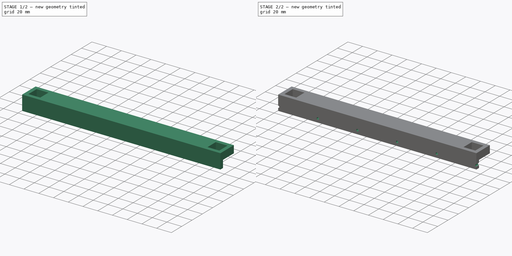
[diagram: build sequence overview — one tinted view per stage of 2, left to right]
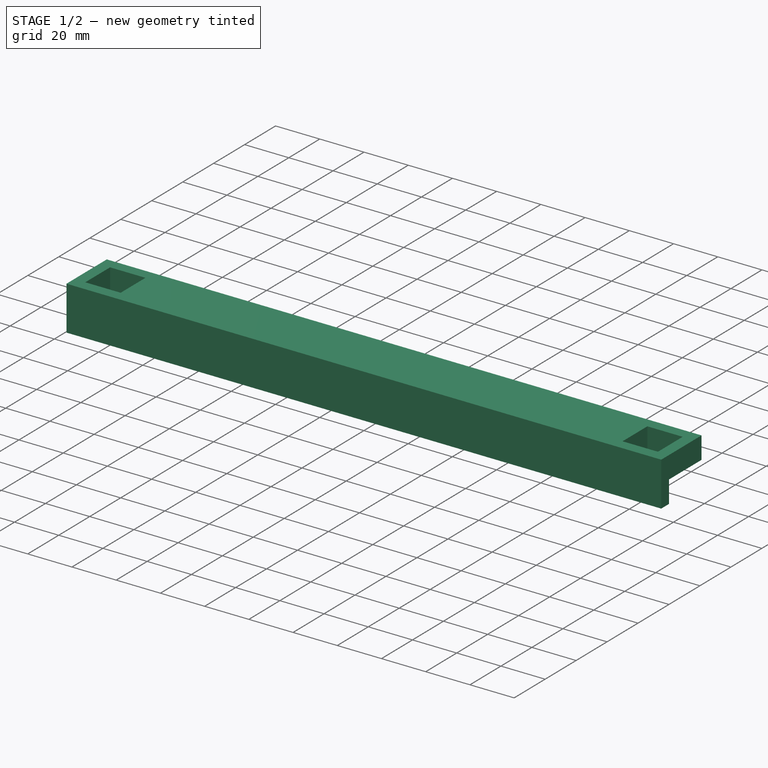
[diagram: stage 1 of 2 — iso view after this stage's code; geometry added in this stage tinted green]
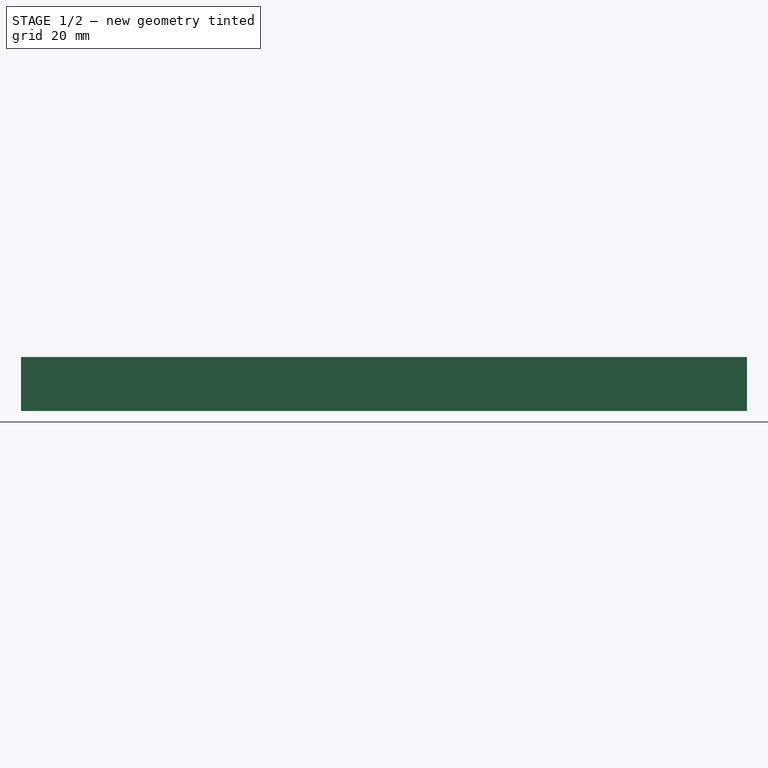
[diagram: stage 1 of 2 — front view after this stage's code; geometry added in this stage tinted green]
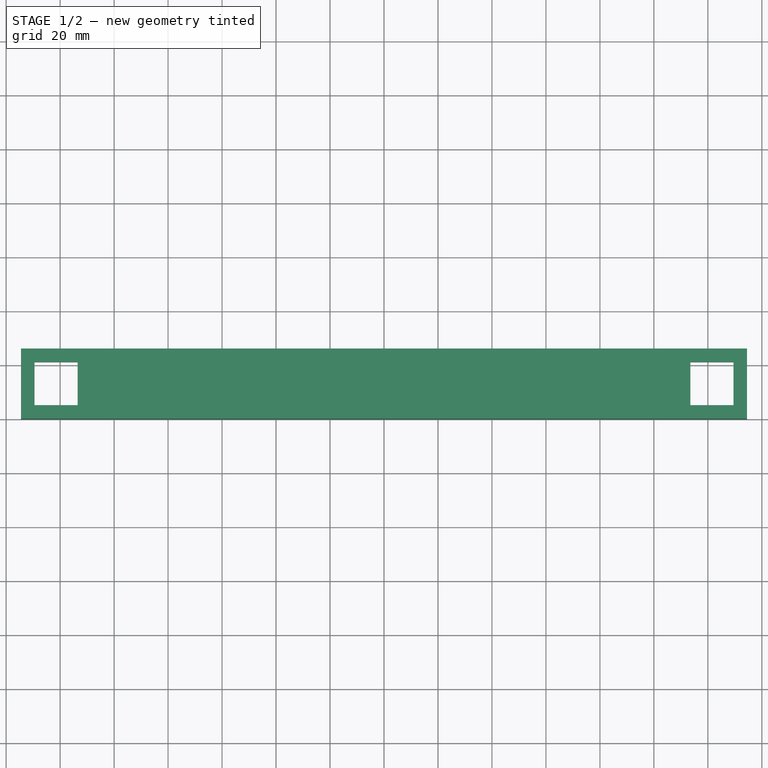
[diagram: stage 1 of 2 — top view after this stage's code; geometry added in this stage tinted green]
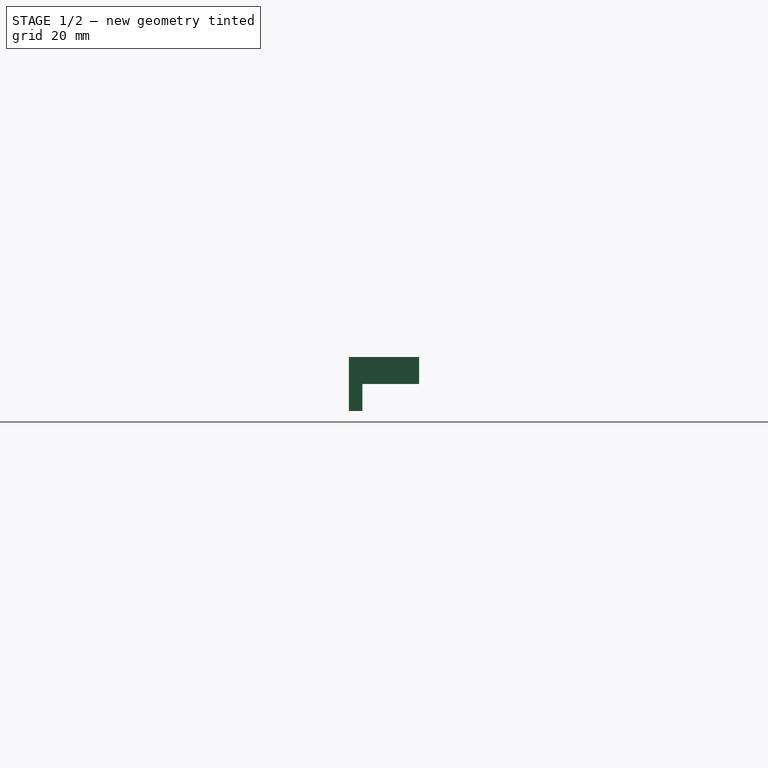
[diagram: stage 1 of 2 — right view after this stage's code; geometry added in this stage tinted green]
FCSTD DOCUMENT  (FreeCAD 0.21R33694 (Git))
Label: ngen_LePow_LcdFrame_moarExtruder
License: All rights reserved
LicenseURL: https://en.wikipedia.org/wiki/All_rights_reserved
objects: Sketcher::SketchObject×4, PartDesign::Pad×2, PartDesign::Pocket×1, PartDesign::Body×1
note: 11 computed .brp shape members not serialized (recipe doc carries the construction recipe); baked Part::Feature solids carry a one-line shape summary decoded from their .brp

FEATURE [Sketcher::SketchObject] Sketch
  FullyConstrained = true
  MapMode = 5
  Support = -> [XY_Plane]
  sketch-geometry (19):
    g0: LineSegment StartX=113.5 StartY=5 StartZ=0 EndX=129.5 EndY=5 EndZ=0
    g1: LineSegment StartX=129.5 StartY=5 StartZ=0 EndX=129.5 EndY=21 EndZ=0
    g2: LineSegment StartX=129.5 StartY=21 StartZ=0 EndX=113.5 EndY=21 EndZ=0
    g3: LineSegment StartX=113.5 StartY=21 StartZ=0 EndX=113.5 EndY=5 EndZ=0
    g4: LineSegment StartX=-129.5 StartY=5 StartZ=0 EndX=-113.5 EndY=5 EndZ=0
    g5: LineSegment StartX=-113.5 StartY=5 StartZ=0 EndX=-113.5 EndY=21 EndZ=0
    g6: LineSegment StartX=-113.5 StartY=21 StartZ=0 EndX=-129.5 EndY=21 EndZ=0
    g7: LineSegment StartX=-129.5 StartY=21 StartZ=0 EndX=-129.5 EndY=5 EndZ=0
    g8: GeomPoint X=-129.5 Y=13 Z=0
    g9: LineSegment StartX=-129.5 StartY=13 StartZ=0 EndX=129.5 EndY=13 EndZ=0
    g10: GeomPoint X=129.5 Y=13 Z=0
    g11: LineSegment StartX=-134.5 StartY=26 StartZ=0 EndX=134.5 EndY=26 EndZ=0
    g12: LineSegment StartX=134.5 StartY=26 StartZ=0 EndX=134.5 EndY=3.9329e-12 EndZ=0
    g13: LineSegment StartX=134.5 StartY=3.9333e-12 StartZ=0 EndX=-134.5 EndY=3.9333e-12 EndZ=0
    g14: LineSegment StartX=-134.5 StartY=3.9333e-12 StartZ=0 EndX=-134.5 EndY=26 EndZ=0
    g15: LineSegment StartX=-129.5 StartY=21 StartZ=0 EndX=-134.5 EndY=21 EndZ=0
    g16: LineSegment StartX=-113.5 StartY=21 StartZ=0 EndX=-113.5 EndY=26 EndZ=0
    g17: LineSegment StartX=-113.5 StartY=5 StartZ=0 EndX=-113.5 EndY=3.9337e-12 EndZ=0
    g18: LineSegment StartX=129.5 StartY=21 StartZ=0 EndX=134.5 EndY=21 EndZ=0
  constraints (51):
    c: Coincident(g0,g1)
    c: Coincident(g1,g2)
    c: Coincident(g2,g3)
    c: Coincident(g3,g0)
    c: Horizontal(g0)
    c: Horizontal(g2)
    c: Vertical(g1)
    c: Vertical(g3)
    c: Coincident(g4,g5)
    c: Coincident(g5,g6)
    c: Coincident(g6,g7)
    c: Coincident(g7,g4)
    c: Horizontal(g4)
    c: Horizontal(g6)
    c: Vertical(g5)
    c: Vertical(g7)
    c: Equal(g5,g4)
    c: Equal(g3,g0)
    c: Equal(g4,g0)
    c: DistanceX(g4,g4) = 16
    c: Symmetric(g6,g4,g8)
    c: Symmetric(g1,g0,g10)
    c: Coincident(g9,g8)
    c: Coincident(g10,g9)
    c: Symmetric(g8,g9,g-2)
    c: DistanceY(g-1,g8) = 13
    c: DistanceX(g4,g0) = 227
    c: Coincident(g11,g12)
    c: Coincident(g12,g13)
    c: Coincident(g13,g14)
    c: Coincident(g14,g11)
    c: Horizontal(g11)
    c: Horizontal(g13)
    c: Vertical(g12)
    c: Vertical(g14)
    c: Coincident(g15,g6)
    c: PointOnObject(g15,g14)
    c: Horizontal(g15)
    c: DistanceX(g15,g15) = 5
    c: Coincident(g16,g5)
    c: PointOnObject(g16,g11)
    c: Vertical(g16)
    c: Equal(g16,g15)
    c: Coincident(g17,g4)
    c: PointOnObject(g17,g13)
    c: Vertical(g17)
    c: Equal(g17,g16)
    c: Coincident(g18,g1)
    c: PointOnObject(g18,g12)
    c: Horizontal(g18)
    c: Equal(g15,g18)
FEATURE [PartDesign::Pad] Pad
  Direction = (0,0,1)
  Length = 10
  Length2 = 10
  Profile = -> Sketch
  ReferenceAxis = -> Sketch [N_Axis]
  Type = 0
FEATURE [Sketcher::SketchObject] Sketch001
  ExternalGeometry = -> [Pad]
  FullyConstrained = true
  MapMode = 5
  Placement = pos=(0,3.9334e-12,0) rot=(1,0,0;1.5708rad)
  Support = -> [Pad]
  sketch-geometry (4):
    g0: LineSegment StartX=-134.5 StartY=0 StartZ=0 EndX=134.5 EndY=0 EndZ=0
    g1: LineSegment StartX=134.5 StartY=0 StartZ=0 EndX=134.5 EndY=5 EndZ=0
    g2: LineSegment StartX=134.5 StartY=5 StartZ=0 EndX=-134.5 EndY=5 EndZ=0
    g3: LineSegment StartX=-134.5 StartY=5 StartZ=0 EndX=-134.5 EndY=0 EndZ=0
  constraints (10):
    c: Coincident(g0,g1)
    c: Coincident(g1,g2)
    c: Coincident(g2,g3)
    c: Coincident(g3,g0)
    c: Horizontal(g0)
    c: Horizontal(g2)
    c: Vertical(g1)
    c: Vertical(g3)
    c: Coincident(g0,g-3)
    c: Symmetric(g0,g-4,g1)
FEATURE [Sketcher::SketchObject] Sketch002
  ExternalGeometry = -> [Pad]
  FullyConstrained = true
  MapMode = 5
  Placement = pos=(0,0,0) rot=(1,0,0;3.14159rad)
  Support = -> [Pad]
  sketch-geometry (4):
    g0: LineSegment StartX=-134.5 StartY=0 StartZ=0 EndX=134.5 EndY=0 EndZ=0
    g1: LineSegment StartX=134.5 StartY=0 StartZ=0 EndX=134.5 EndY=-5 EndZ=0
    g2: LineSegment StartX=134.5 StartY=-5 StartZ=0 EndX=-134.5 EndY=-5 EndZ=0
    g3: LineSegment StartX=-134.5 StartY=-5 StartZ=0 EndX=-134.5 EndY=0 EndZ=0
  constraints (11):
    c: Coincident(g0,g1)
    c: Coincident(g1,g2)
    c: Coincident(g2,g3)
    c: Coincident(g3,g0)
    c: Horizontal(g0)
    c: Horizontal(g2)
    c: Vertical(g1)
    c: Vertical(g3)
    c: Coincident(g0,g-3)
    c: PointOnObject(g1,g-4)
    c: PointOnObject(g-5,g2)
FEATURE [PartDesign::Pad] Pad001
  BaseFeature = -> Pad
  Direction = (0,0,-1)
  Length = 10
  Length2 = 10
  Profile = -> Sketch002
  ReferenceAxis = -> Sketch002 [N_Axis]
  Type = 0
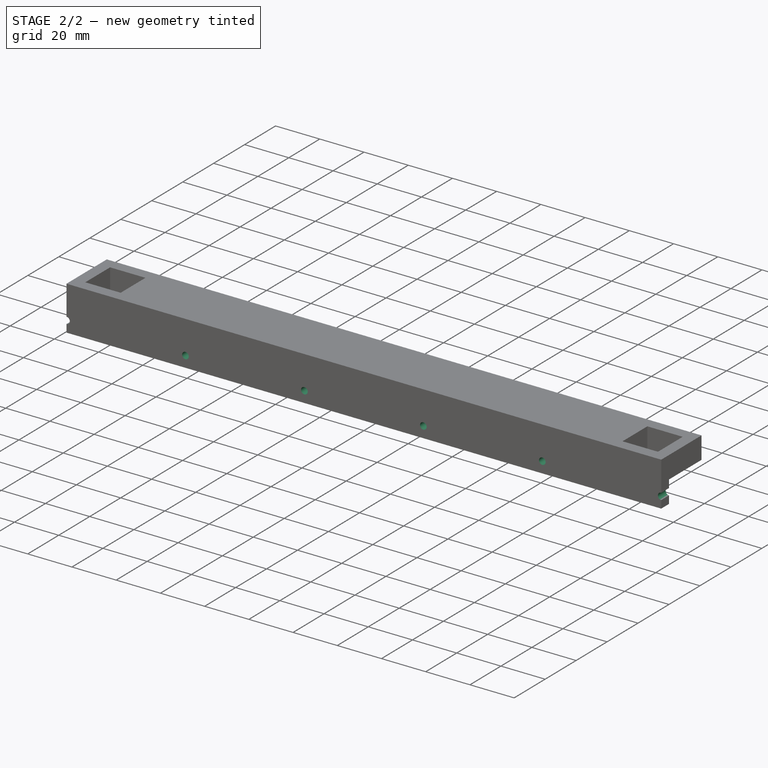
[diagram: stage 2 of 2 — iso view after this stage's code; geometry added in this stage tinted green]
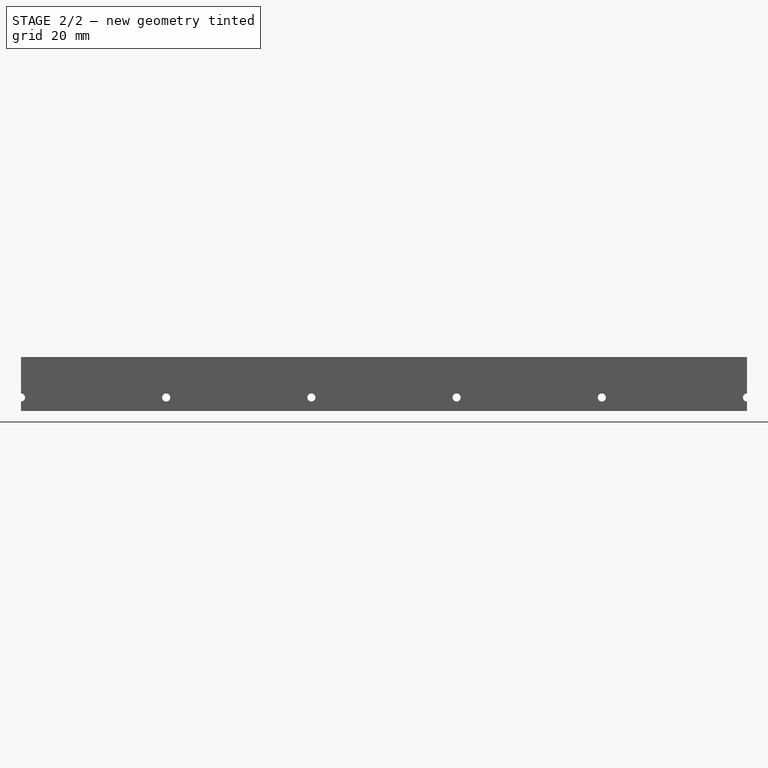
[diagram: stage 2 of 2 — front view after this stage's code; geometry added in this stage tinted green]
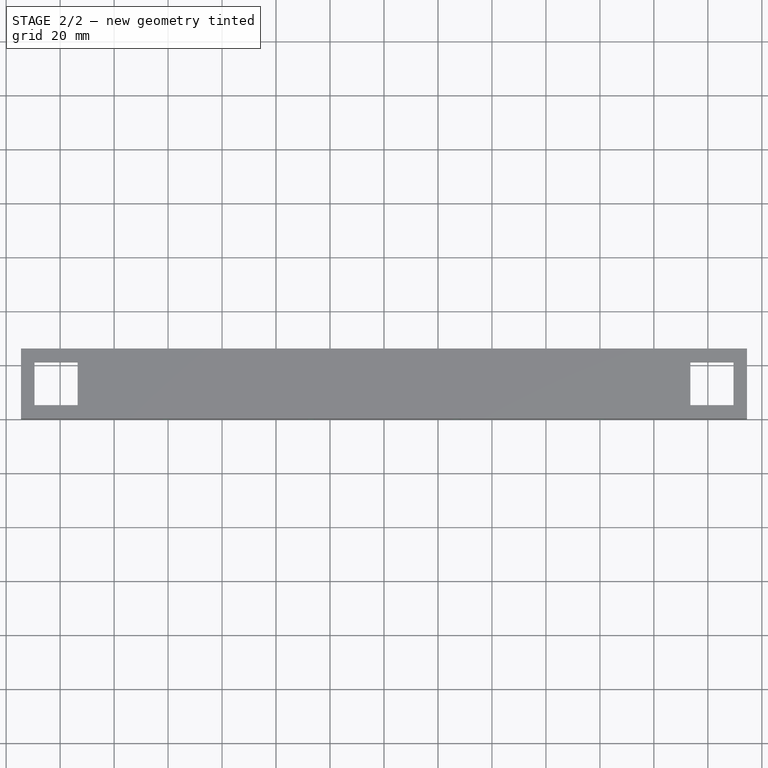
[diagram: stage 2 of 2 — top view after this stage's code; geometry added in this stage tinted green]
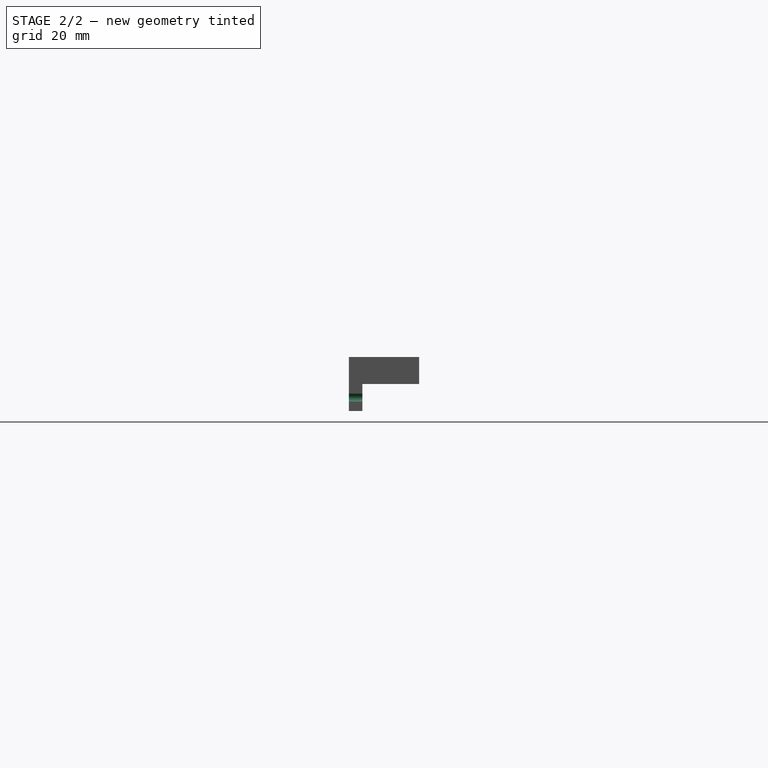
[diagram: stage 2 of 2 — right view after this stage's code; geometry added in this stage tinted green]
FEATURE [Sketcher::SketchObject] Sketch003
  ExternalGeometry = -> [Pad001]
  FullyConstrained = true
  MapMode = 5
  Placement = pos=(0,5,0) rot=(0,0.707107,0.707107;3.14159rad)
  Support = -> [Pad001]
  sketch-geometry (11):
    g0: Circle CenterX=-134.5 CenterY=-5 CenterZ=0 NormalX=0 NormalY=0 NormalZ=1 AngleXU=0 Radius=1.5
    g1: Circle CenterX=-80.7 CenterY=-5 CenterZ=0 NormalX=0 NormalY=0 NormalZ=1 AngleXU=0 Radius=1.5
    g2: Circle CenterX=-26.9 CenterY=-5 CenterZ=0 NormalX=0 NormalY=0 NormalZ=1 AngleXU=0 Radius=1.5
    g3: Circle CenterX=26.9 CenterY=-5 CenterZ=0 NormalX=0 NormalY=0 NormalZ=1 AngleXU=0 Radius=1.5
    g4: Circle CenterX=80.7 CenterY=-5 CenterZ=0 NormalX=0 NormalY=0 NormalZ=1 AngleXU=0 Radius=1.5
    g5: Circle CenterX=134.5 CenterY=-5 CenterZ=0 NormalX=0 NormalY=0 NormalZ=1 AngleXU=0 Radius=1.5
    g6: LineSegment StartX=-134.5 StartY=-5 StartZ=0 EndX=-80.7 EndY=-5 EndZ=0
    g7: LineSegment StartX=-80.7 StartY=-5 StartZ=0 EndX=-26.9 EndY=-5 EndZ=0
    g8: LineSegment StartX=-26.9 StartY=-5 StartZ=0 EndX=26.9 EndY=-5 EndZ=0
    g9: LineSegment StartX=26.9 StartY=-5 StartZ=0 EndX=80.7 EndY=-5 EndZ=0
    g10: LineSegment StartX=80.7 StartY=-5 StartZ=0 EndX=134.5 EndY=-5 EndZ=0
  constraints (27):
    c: Coincident(g6,g0)
    c: Coincident(g6,g1)
    c: Horizontal(g6)
    c: Coincident(g7,g1)
    c: Coincident(g7,g2)
    c: Horizontal(g7)
    c: Coincident(g8,g2)
    c: Coincident(g8,g3)
    c: Horizontal(g8)
    c: Coincident(g9,g3)
    c: Coincident(g9,g4)
    c: Horizontal(g9)
    c: Coincident(g10,g4)
    c: Coincident(g10,g5)
    c: Horizontal(g10)
    c: Equal(g6,g7)
    c: Equal(g7,g8)
    c: Equal(g8,g9)
    c: Equal(g9,g10)
    c: Equal(g0,g1)
    c: Equal(g1,g2)
    c: Equal(g2,g3)
    c: Equal(g3,g4)
    c: Equal(g4,g5)
    c: Diameter(g0) = 3
    c: Symmetric(g-3,g-3,g0)
    c: PointOnObject(g5,g-4)
FEATURE [PartDesign::Pocket] Pocket
  BaseFeature = -> Pad001
  Direction = (0,-1,2e-16)
  Length = 5
  Length2 = 5
  Profile = -> Sketch003
  ReferenceAxis = -> Sketch003 [N_Axis]
  Type = 1
FEATURE [PartDesign::Body] Body
  Group = -> [Sketch,Pad,Sketch001,Sketch002,Pad001,Sketch003,Pocket]
  Origin = -> Origin
  Tip = -> Pocket
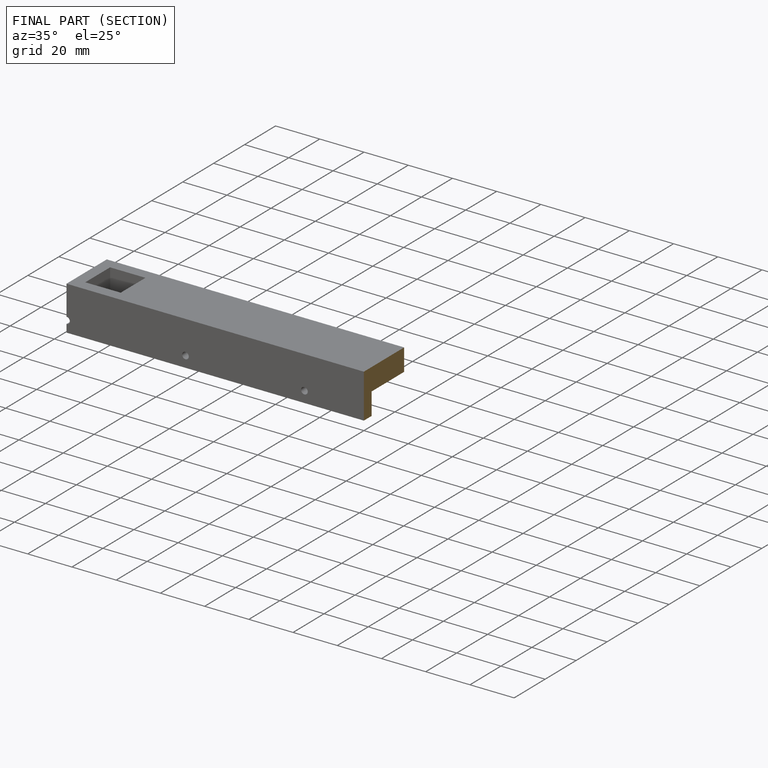
[diagram: finished part — half-section view (interior)]
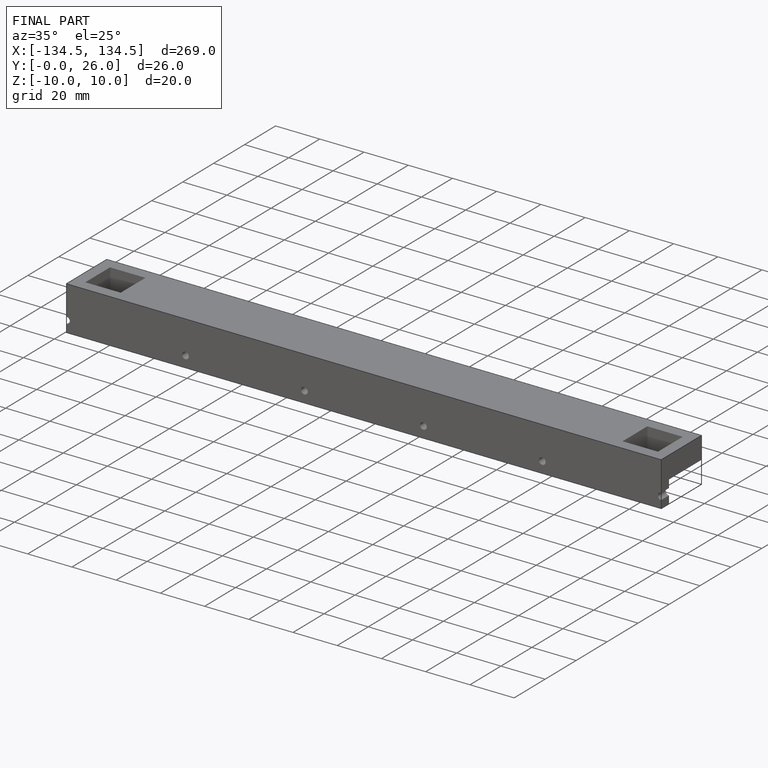
[diagram: finished part — iso view with bounding-box wireframe]
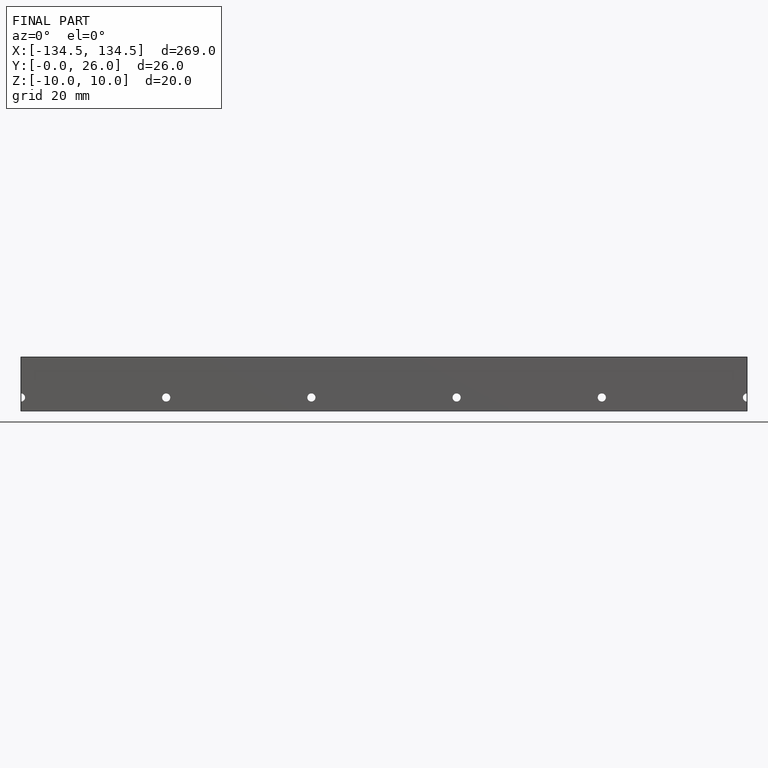
[diagram: finished part — front view with bounding-box wireframe]
